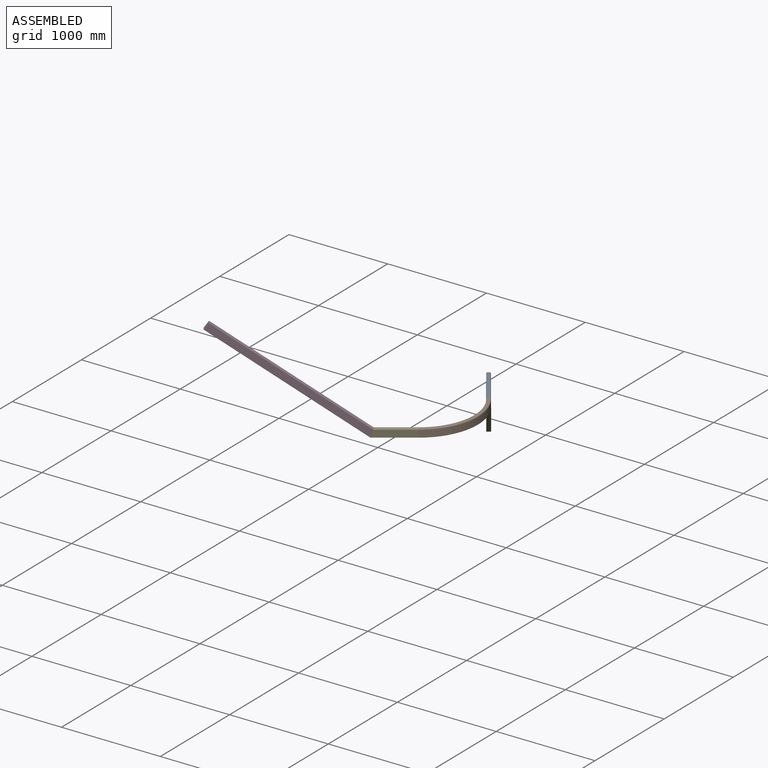
[diagram: assembled view]
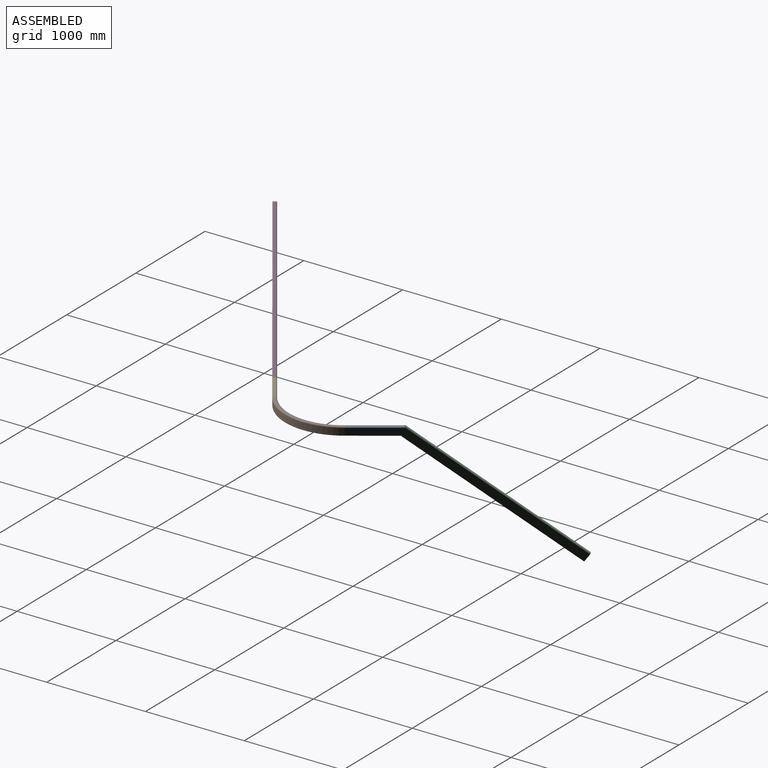
[diagram: assembled view, second angle]
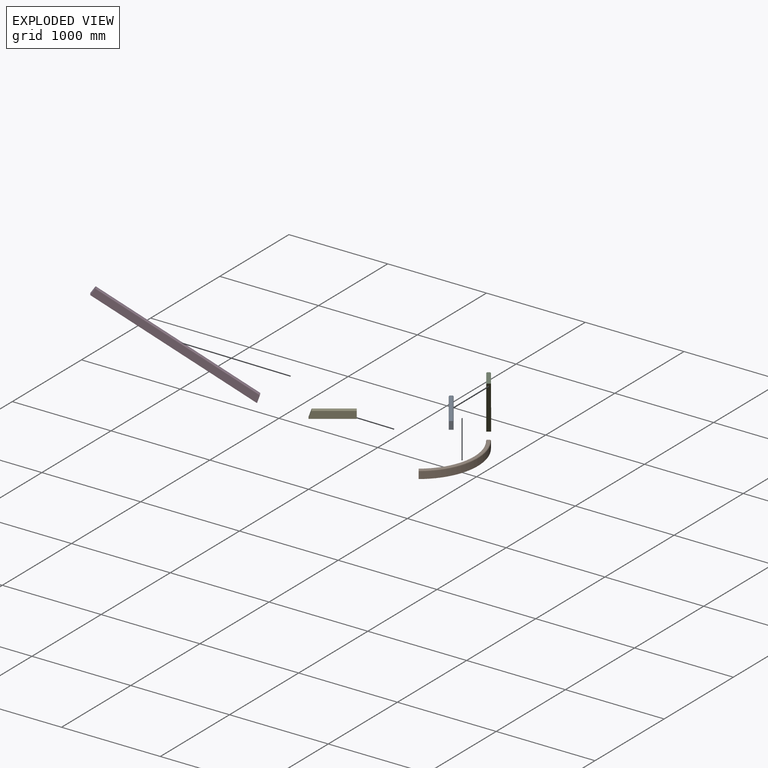
[diagram: exploded view]
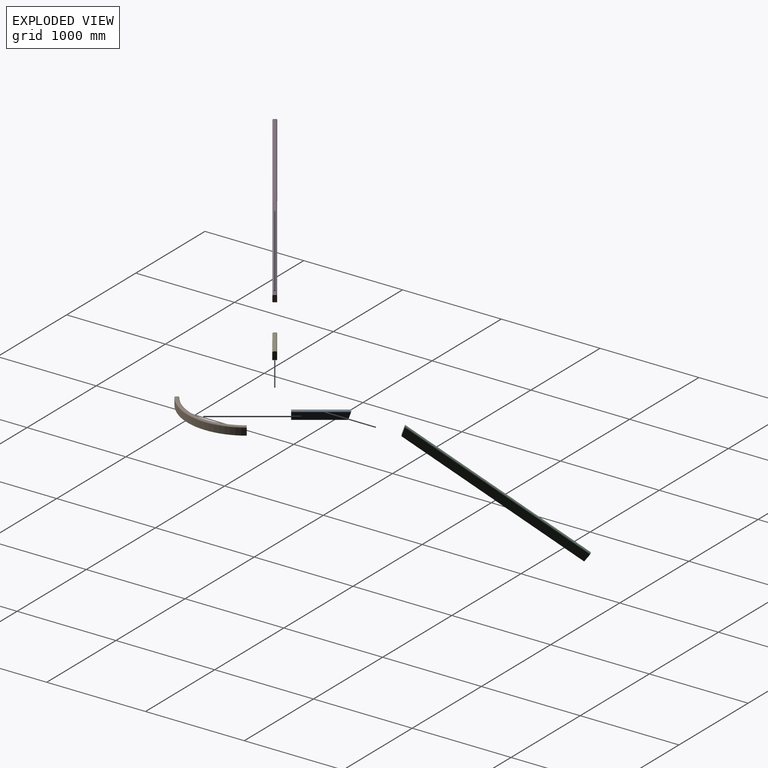
[diagram: exploded view, second angle]
ASSEMBLY  parts=5 mates=4
PART A: 8 faces, bbox 500x40x80 mm
  f0: plane 496.64x70mm, normal (0,1,0), area 33943mm2, adj f1,f3,f5,f7
  f1: plane 80x40mm, normal (-1,0,0), area 3157.1mm2, adj f0,f2,f3,f4,f6,f7
  f2: plane 496.64x70mm, normal (0,-1,0), area 33943mm2, adj f1,f3,f5,f6
  f3: plane 473.15x40mm, normal (0,0,-1), area 18926.2mm2, adj f0,f1,f2,f5
  f4: plane 500x20mm, normal (0,0,1), area 10000mm2, adj f1,f5,f6,f7
  f5: plane 80x40mm, normal (0.95,0,-0.32), area 3330.1mm2, adj f0,f2,f3,f4,f6,f7
  f6: cylinder r=10mm len=500mm, axis (1,0,0), area 7834.8mm2, adj f1,f2,f4,f5
  f7: cylinder r=10mm len=500mm, axis (-1,0,0), area 7834.8mm2, adj f0,f1,f4,f5
PART B: 8 faces, bbox 649.4x649.4x80 mm
  f0: cylinder r=560mm len=560mm, axis (0,0,-1), area 61575.2mm2, adj f1,f3,f5,f7
  f1: plane 80x40mm, normal (-1,0,0), area 3157.1mm2, adj f0,f2,f4,f5,f6,f7
  f2: cylinder r=600mm len=600mm, axis (0,0,-1), area 65973.4mm2, adj f1,f3,f5,f6
  f3: plane 80x40mm, normal (0,1,0), area 3157.1mm2, adj f0,f2,f4,f5,f6,f7
  f4: plane 590x590mm, normal (0,0,1), area 18221.2mm2, adj f1,f3,f6,f7
  f5: plane 600x600mm, normal (0,0,-1), area 36442.5mm2, adj f0,f1,f2,f3
  f6: torus R=590mm, axis (0,0,1), area 14714.7mm2, adj f1,f2,f3,f4
  f7: torus R=570mm, axis (0,0,1), area 13907.1mm2, adj f0,f1,f3,f4
PART C: 8 faces, bbox 1930x40x89.4 mm
  f0: plane 89.41x40mm, normal (1,0,0), area 3533.6mm2, adj f1,f3,f4,f5,f6,f7
  f1: plane 1930x20mm, normal (0,0,1), area 38600.1mm2, adj f0,f2,f6,f7
  f2: plane 89.41x40mm, normal (-0.95,0,-0.32), area 3727.2mm2, adj f1,f3,f4,f5,f6,f7
  f3: plane 1900x40mm, normal (0,0,-1), area 76000mm2, adj f0,f2,f4,f5
  f4: plane 1926.65x79.41mm, normal (0,1,0), area 151940.4mm2, adj f0,f2,f3,f7
  f5: plane 1926.65x79.41mm, normal (0,-1,0), area 151940.4mm2, adj f0,f2,f3,f6
  f6: cylinder r=10mm len=1930mm, axis (-1,0,0), area 30297.3mm2, adj f0,f1,f2,f5
  f7: cylinder r=10mm len=1930mm, axis (1,0,0), area 30297.3mm2, adj f0,f1,f2,f4
PART D: 8 faces, bbox 1700x40x80 mm
  f0: plane 1675.54x20mm, normal (0,0,1), area 33510.8mm2, adj f1,f3,f6,f7
  f1: plane 80x40mm, normal (-1,0,0), area 3157.1mm2, adj f0,f2,f4,f5,f6,f7
  f2: plane 1700x40mm, normal (0,0,-1), area 68000mm2, adj f1,f3,f4,f5
  f3: plane 80x40mm, normal (0.96,0,0.29), area 3301.3mm2, adj f0,f2,f4,f5,f6,f7
  f4: plane 1700x70mm, normal (0,1,0), area 118251mm2, adj f1,f2,f3,f7
  f5: plane 1700x70mm, normal (0,-1,0), area 118251mm2, adj f1,f2,f3,f6
  f6: cylinder r=10mm len=1678.6mm, axis (-1,0,0), area 26336.8mm2, adj f0,f1,f3,f5
  f7: cylinder r=10mm len=1678.6mm, axis (1,0,0), area 26336.8mm2, adj f0,f1,f3,f4
PART E: 8 faces, bbox 400x40x80 mm
  f0: plane 80x40mm, normal (1,0,0), area 3157.1mm2, adj f1,f3,f4,f5,f6,f7
  f1: plane 373.15x20mm, normal (0,0,1), area 7463.1mm2, adj f0,f2,f6,f7
  f2: plane 80x40mm, normal (-0.95,0,0.32), area 3330.1mm2, adj f1,f3,f4,f5,f6,f7
  f3: plane 400x40mm, normal (0,0,-1), area 16000mm2, adj f0,f2,f4,f5
  f4: plane 400x70mm, normal (0,1,0), area 27177.9mm2, adj f0,f2,f3,f7
  f5: plane 400x70mm, normal (0,-1,0), area 27177.9mm2, adj f0,f2,f3,f6
  f6: cylinder r=10mm len=376.51mm, axis (-1,0,0), area 5880.7mm2, adj f0,f1,f2,f5
  f7: cylinder r=10mm len=376.51mm, axis (1,0,0), area 5880.7mm2, adj f0,f1,f2,f4
PLACE A rot(axis=(0,0,1),125deg) t=(872.13,-56.86,-1805.88)mm
PLACE B rot(axis=(0,0,1),35deg) t=(445.41,-472.82,-1885.86)mm
PLACE C rot(axis=(-0.31,0.16,0.94),128.1deg) t=(40.61,1152.31,-2674.53)mm
PLACE D rot(axis=(-0.22,0.7,0.68),49.5deg) t=(-398.5,-1795.56,-1135.21)mm
PLACE E rot(axis=(0,0,1),35deg) t=(609.82,-1090.07,-1805.87)mm
MATE fastened E.f2 <-> D.f3  axis (-0.78,-0.54,0.32) through (461.02,-1169.77,-1846.38)mm
MATE fastened A.f1 <-> B.f3  axis (0.57,-0.82,0) through (920.64,-140.33,-1846.4)mm
MATE fastened A.f5 <-> C.f2  axis (-0.54,0.78,-0.32) through (641.8,258.22,-1846.39)mm
MATE fastened E.f0 <-> B.f1  axis (0.82,0.57,0) through (777.9,-948.05,-1846.39)mm
